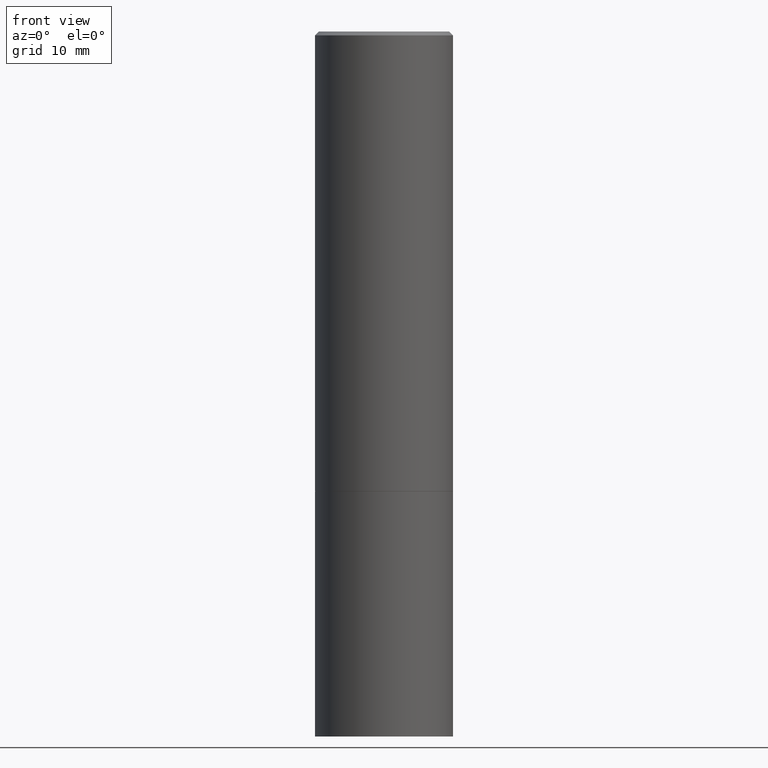
[diagram: clean part render]
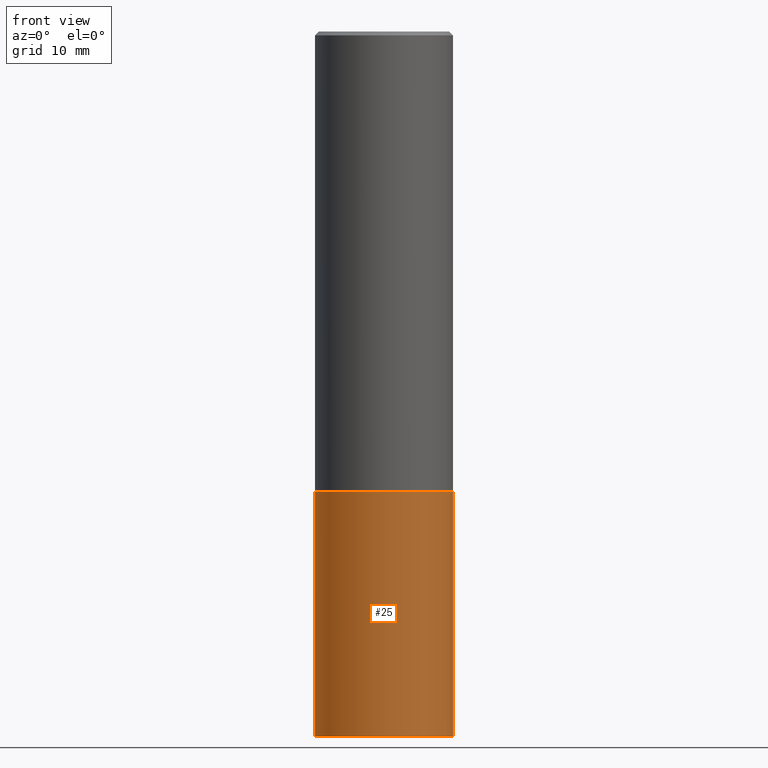
[diagram: same view with one face highlighted and labeled with its STEP entity id]
A machine part, front view. The second image highlights one B-rep face of the part: STEP entity #25.
In plain terms, the highlighted cylindrical surface (partial cylindrical patch) has radius 9.0005 mm, axis along (-0, 0, 1).
Its self-contained STEP definition (entity closure, byte-faithful):
#5 = AXIS2_PLACEMENT_3D ( 'NONE', #328, #147, #117 ) ;
#16 = CARTESIAN_POINT ( 'NONE',  ( -0.3543499999999999983, -7.929053129786659628E-15, -2.362199999999999633 ) ) ;
#22 = VECTOR ( 'NONE', #348, 39.37007874015748143 ) ;
#25 = ADVANCED_FACE ( 'NONE', ( #187 ), #91, .T. ) ;
#28 = AXIS2_PLACEMENT_3D ( 'NONE', #221, #281, #333 ) ;
#34 = CIRCLE ( 'NONE', #130, 0.3543499999999999983 ) ;
#61 = DIRECTION ( 'NONE',  ( -2.445468806185136877E-29, 3.491481338843145188E-15, 1.000000000000000000 ) ) ;
#69 = VECTOR ( 'NONE', #61, 39.37007874015748143 ) ;
#86 = EDGE_CURVE ( 'NONE', #298, #259, #179, .T. ) ;
#91 = CYLINDRICAL_SURFACE ( 'NONE', #5, 0.3543499999999999983 ) ;
#110 = ORIENTED_EDGE ( 'NONE', *, *, #236, .F. ) ;
#117 = DIRECTION ( 'NONE',  ( 1.000000000000000000, -6.982962677686266711E-15, 4.876176775795935793E-29 ) ) ;
#128 = DIRECTION ( 'NONE',  ( 1.000000000000000000, -6.982962677686268288E-15, 0.000000000000000000 ) ) ;
#130 = AXIS2_PLACEMENT_3D ( 'NONE', #275, #189, #128 ) ;
#132 = EDGE_LOOP ( 'NONE', ( #201, #320, #240, #110 ) ) ;
#147 = DIRECTION ( 'NONE',  ( -2.445468806185136597E-29, 3.491481338843145583E-15, 1.000000000000000000 ) ) ;
#150 = CIRCLE ( 'NONE', #28, 0.3543499999999999983 ) ;
#179 = LINE ( 'NONE', #295, #22 ) ;
#187 = FACE_OUTER_BOUND ( 'NONE', #132, .T. ) ;
#189 = DIRECTION ( 'NONE',  ( -2.445468806185136597E-29, 3.491481338843145583E-15, 1.000000000000000000 ) ) ;
#201 = ORIENTED_EDGE ( 'NONE', *, *, #86, .F. ) ;
#202 = LINE ( 'NONE', #283, #69 ) ;
#205 = VERTEX_POINT ( 'NONE', #355 ) ;
#218 = EDGE_CURVE ( 'NONE', #298, #205, #150, .T. ) ;
#221 = CARTESIAN_POINT ( 'NONE',  ( 8.857488016002564476E-29, -1.264614540928987199E-14, -3.621999999999999886 ) ) ;
#230 = CARTESIAN_POINT ( 'NONE',  ( -0.3543499999999999983, -7.929053129786659628E-15, -3.621999999999999886 ) ) ;
#236 = EDGE_CURVE ( 'NONE', #259, #292, #34, .T. ) ;
#240 = ORIENTED_EDGE ( 'NONE', *, *, #314, .T. ) ;
#259 = VERTEX_POINT ( 'NONE', #16 ) ;
#275 = CARTESIAN_POINT ( 'NONE',  ( 5.776686413970529753E-29, -8.247577218615278049E-15, -2.362199999999999633 ) ) ;
#277 = CARTESIAN_POINT ( 'NONE',  ( 0.3543499999999999983, -1.072199004345340635E-14, -2.362199999999999633 ) ) ;
#281 = DIRECTION ( 'NONE',  ( -2.445468806185136597E-29, 3.491481338843145583E-15, 1.000000000000000000 ) ) ;
#283 = CARTESIAN_POINT ( 'NONE',  ( 0.3543499999999999983, -2.474412824838128694E-15, 1.727873240503289749E-29 ) ) ;
#292 = VERTEX_POINT ( 'NONE', #277 ) ;
#295 = CARTESIAN_POINT ( 'NONE',  ( -0.3543499999999999983, 2.517808184165914997E-15, -1.743024649231826066E-29 ) ) ;
#298 = VERTEX_POINT ( 'NONE', #230 ) ;
#314 = EDGE_CURVE ( 'NONE', #205, #292, #202, .T. ) ;
#320 = ORIENTED_EDGE ( 'NONE', *, *, #218, .T. ) ;
#328 = CARTESIAN_POINT ( 'NONE',  ( 0.000000000000000000, 0.000000000000000000, 0.000000000000000000 ) ) ;
#333 = DIRECTION ( 'NONE',  ( 1.000000000000000000, -6.982962677686265922E-15, 0.000000000000000000 ) ) ;
#348 = DIRECTION ( 'NONE',  ( -2.445468806185136877E-29, 3.491481338843145188E-15, 1.000000000000000000 ) ) ;
#355 = CARTESIAN_POINT ( 'NONE',  ( 0.3543499999999999983, -1.512055823412800029E-14, -3.621999999999999886 ) ) ;